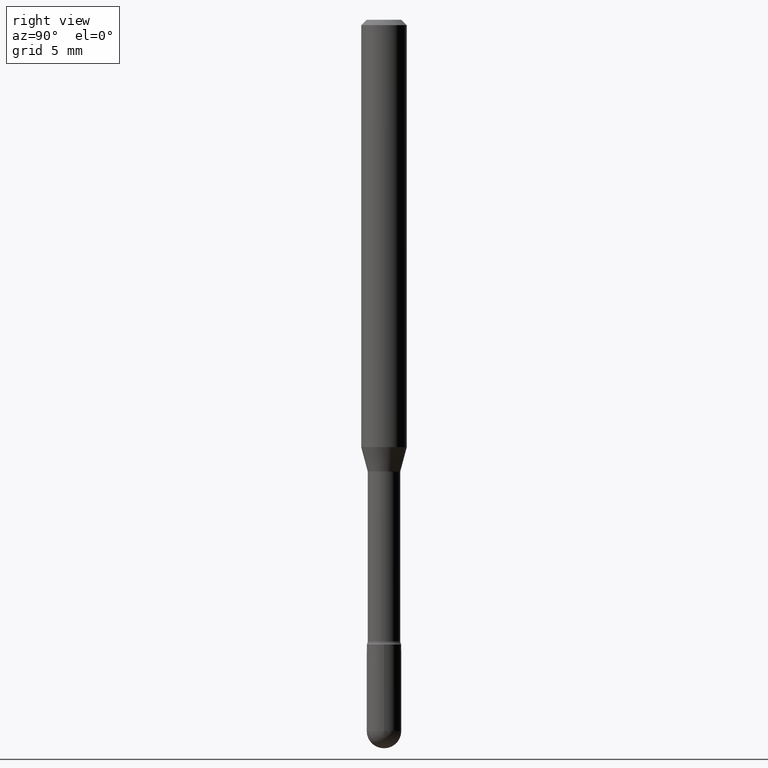
[diagram: clean part render]
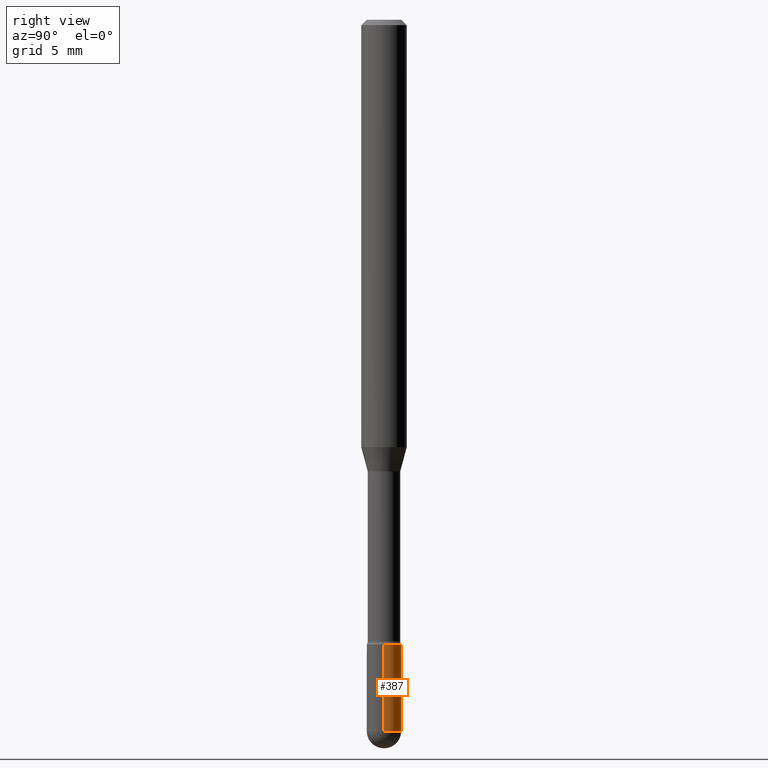
[diagram: same view with one face highlighted and labeled with its STEP entity id]
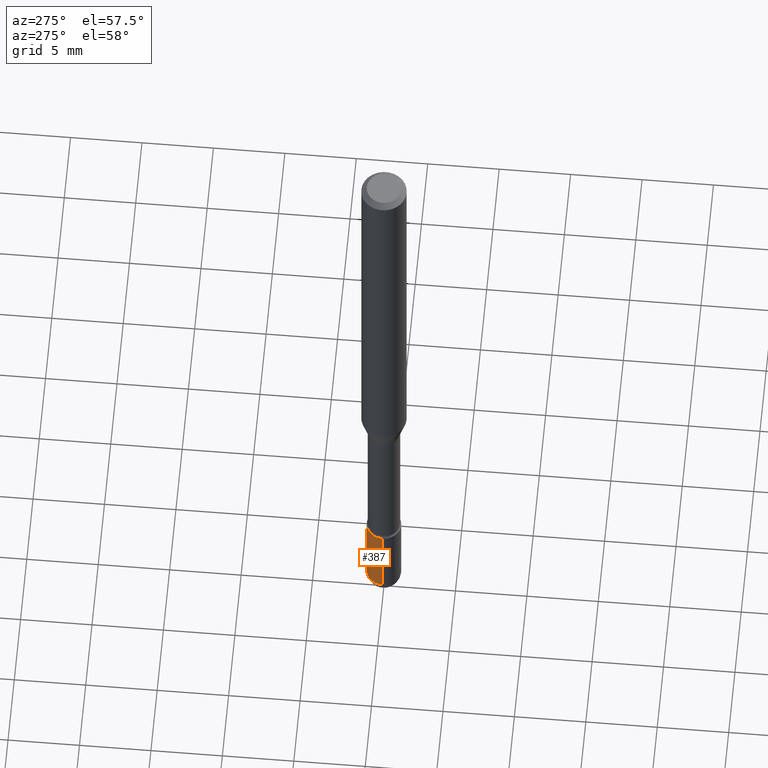
[diagram: same view with one face highlighted and labeled with its STEP entity id]
A machine part, right view. The second image highlights one B-rep face of the part: STEP entity #387.
A second angle (auxiliary view) of the same face is appended — the face is thin or edge-on in the first view.
In plain terms, the highlighted cylindrical surface (edge-blend (fillet) strip) has radius 1.2065 mm, axis along (-0, 0, 1).
Its self-contained STEP definition (entity closure, byte-faithful):
#23 = VERTEX_POINT ( 'NONE', #542 ) ;
#36 = CARTESIAN_POINT ( 'NONE',  ( 0.04749999999999999362, -6.319581223306092199E-15, -1.715000000000000080 ) ) ;
#116 = CARTESIAN_POINT ( 'NONE',  ( 0.04750000000000000749, -3.316907271900977082E-16, 2.316183968503069432E-30 ) ) ;
#125 = ORIENTED_EDGE ( 'NONE', *, *, #258, .F. ) ;
#126 = DIRECTION ( 'NONE',  ( -2.445468806185136597E-29, 3.491481338843145583E-15, 1.000000000000000000 ) ) ;
#130 = DIRECTION ( 'NONE',  ( 1.000000000000000000, -6.982962677686266711E-15, 4.876176775795934672E-29 ) ) ;
#147 = AXIS2_PLACEMENT_3D ( 'NONE', #437, #395, #130 ) ;
#160 = DIRECTION ( 'NONE',  ( -2.445468806185136877E-29, 3.491481338843145188E-15, 1.000000000000000000 ) ) ;
#163 = DIRECTION ( 'NONE',  ( 1.000000000000000000, -6.982962677686261977E-15, 0.000000000000000000 ) ) ;
#167 = CARTESIAN_POINT ( 'NONE',  ( 4.193979002607509757E-29, -5.987890496115994688E-15, -1.715000000000000080 ) ) ;
#194 = VERTEX_POINT ( 'NONE', #273 ) ;
#212 = VECTOR ( 'NONE', #160, 39.37007874015748143 ) ;
#221 = ORIENTED_EDGE ( 'NONE', *, *, #263, .T. ) ;
#232 = CIRCLE ( 'NONE', #245, 0.04750000000000000749 ) ;
#245 = AXIS2_PLACEMENT_3D ( 'NONE', #284, #515, #333 ) ;
#252 = VERTEX_POINT ( 'NONE', #464 ) ;
#258 = EDGE_CURVE ( 'NONE', #286, #546, #382, .T. ) ;
#263 = EDGE_CURVE ( 'NONE', #194, #23, #232, .T. ) ;
#273 = CARTESIAN_POINT ( 'NONE',  ( 3.316907271901453357E-16, 0.04749999999999317268, -1.952500000000000346 ) ) ;
#284 = CARTESIAN_POINT ( 'NONE',  ( 4.774777844076478914E-29, -6.817117314091241226E-15, -1.952499999999999902 ) ) ;
#286 = VERTEX_POINT ( 'NONE', #36 ) ;
#297 = DIRECTION ( 'NONE',  ( -2.445468806185136597E-29, 3.491481338843145583E-15, 1.000000000000000000 ) ) ;
#304 = CARTESIAN_POINT ( 'NONE',  ( -0.04750000000000000749, 3.375077994860476415E-16, -2.336494167871080260E-30 ) ) ;
#310 = EDGE_CURVE ( 'NONE', #252, #286, #547, .T. ) ;
#311 = DIRECTION ( 'NONE',  ( -2.445468806185136877E-29, 3.491481338843145188E-15, 1.000000000000000000 ) ) ;
#333 = DIRECTION ( 'NONE',  ( 1.000000000000000000, -6.982962677686260400E-15, 0.000000000000000000 ) ) ;
#334 = EDGE_CURVE ( 'NONE', #252, #194, #339, .T. ) ;
#339 = CIRCLE ( 'NONE', #375, 0.04750000000000000749 ) ;
#345 = DIRECTION ( 'NONE',  ( 1.000000000000000000, -6.982962677686260400E-15, 0.000000000000000000 ) ) ;
#362 = CYLINDRICAL_SURFACE ( 'NONE', #147, 0.04750000000000000749 ) ;
#371 = ORIENTED_EDGE ( 'NONE', *, *, #524, .T. ) ;
#375 = AXIS2_PLACEMENT_3D ( 'NONE', #510, #297, #345 ) ;
#382 = CIRCLE ( 'NONE', #564, 0.04749999999999999362 ) ;
#387 = ADVANCED_FACE ( 'NONE', ( #565 ), #362, .T. ) ;
#395 = DIRECTION ( 'NONE',  ( -2.445468806185136597E-29, 3.491481338843145583E-15, 1.000000000000000000 ) ) ;
#437 = CARTESIAN_POINT ( 'NONE',  ( 0.000000000000000000, 0.000000000000000000, 0.000000000000000000 ) ) ;
#457 = ORIENTED_EDGE ( 'NONE', *, *, #334, .T. ) ;
#463 = EDGE_LOOP ( 'NONE', ( #221, #371, #125, #514, #457 ) ) ;
#464 = CARTESIAN_POINT ( 'NONE',  ( 0.04750000000000000749, -6.734194632293715468E-15, -1.952499999999999902 ) ) ;
#473 = CARTESIAN_POINT ( 'NONE',  ( -0.04749999999999999362, -6.064996105617570464E-15, -1.715000000000000080 ) ) ;
#482 = LINE ( 'NONE', #304, #506 ) ;
#506 = VECTOR ( 'NONE', #311, 39.37007874015748143 ) ;
#510 = CARTESIAN_POINT ( 'NONE',  ( 4.774777844076478914E-29, -6.817117314091241226E-15, -1.952499999999999902 ) ) ;
#514 = ORIENTED_EDGE ( 'NONE', *, *, #310, .F. ) ;
#515 = DIRECTION ( 'NONE',  ( -2.445468806185136597E-29, 3.491481338843145583E-15, 1.000000000000000000 ) ) ;
#524 = EDGE_CURVE ( 'NONE', #23, #546, #482, .T. ) ;
#542 = CARTESIAN_POINT ( 'NONE',  ( -0.04750000000000000749, -6.064996105617570464E-15, -1.952499999999999902 ) ) ;
#546 = VERTEX_POINT ( 'NONE', #473 ) ;
#547 = LINE ( 'NONE', #116, #212 ) ;
#564 = AXIS2_PLACEMENT_3D ( 'NONE', #167, #126, #163 ) ;
#565 = FACE_OUTER_BOUND ( 'NONE', #463, .T. ) ;